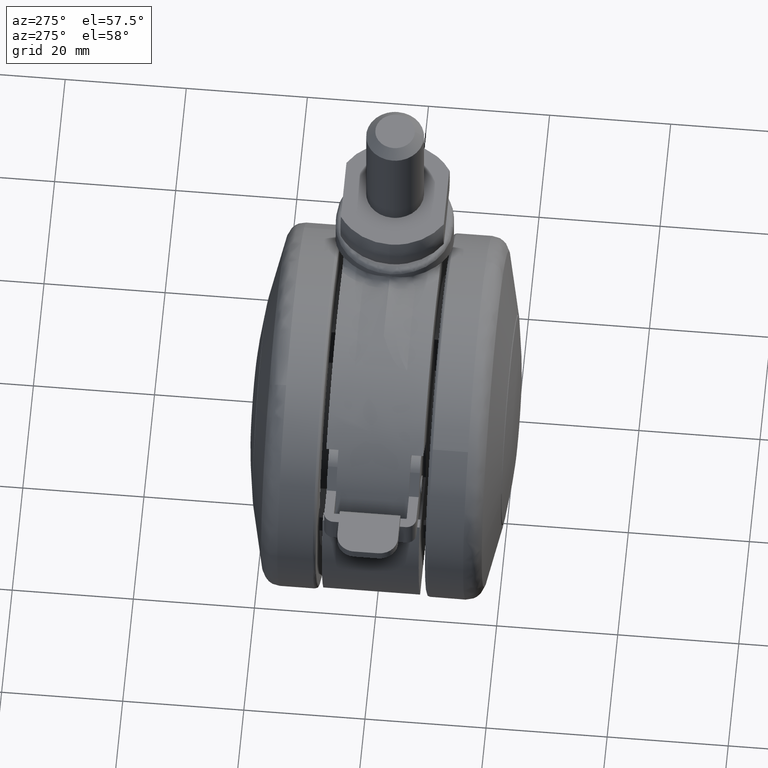
[diagram: clean part render]
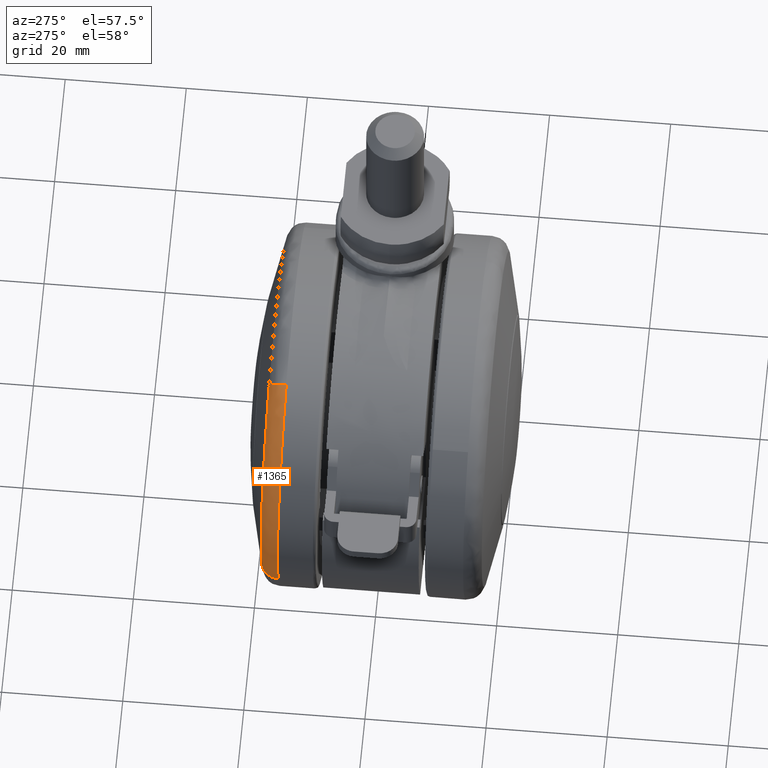
[diagram: same view with one face highlighted and labeled with its STEP entity id]
A machine part, auxiliary view. The second image highlights one B-rep face of the part: STEP entity #1365.
In plain terms, the highlighted face is a freeform B-spline surface patch.
Its self-contained STEP definition (entity closure, byte-faithful):
#736=CARTESIAN_POINT('',(13.438276018698710,-15.324326000230570,26.821870509814680));
#737=VERTEX_POINT('',#736);
#751=CARTESIAN_POINT('',(28.755653670521209,-15.324326000239621,-8.550577874099485));
#752=VERTEX_POINT('',#751);
#753=CARTESIAN_POINT('',(28.755653670521216,-15.324326000239617,-8.550577874099485));
#754=CARTESIAN_POINT('',(30.000000000000004,-15.324326000000100,-4.365832395660854));
#755=CARTESIAN_POINT('',(30.0,-15.324326000000100,-1.653219E-015));
#756=CARTESIAN_POINT('',(29.999999999999996,-15.324326000000097,18.524126393689222));
#757=CARTESIAN_POINT('',(13.438276018698714,-15.324326000230567,26.821870509814683));
#765=(BOUNDED_CURVE()B_SPLINE_CURVE(2,(#753,#754,#755,#756,#757),.UNSPECIFIED.,.F.,.U.)B_SPLINE_CURVE_WITH_KNOTS((3,2,3),(0.201473337935507,0.250000000000000,0.423845389614850),.UNSPECIFIED.)CURVE()GEOMETRIC_REPRESENTATION_ITEM()RATIONAL_B_SPLINE_CURVE((0.908365862590447,0.943147478998632,1.0,0.796327457039311,0.875915174757408))REPRESENTATION_ITEM(''));
#766=EDGE_CURVE('',#752,#737,#765,.T.);
#1245=CARTESIAN_POINT('',(12.453677528621601,-18.215151406440601,24.856679947328331));
#1246=VERTEX_POINT('',#1245);
#1262=CARTESIAN_POINT('',(13.438276018698710,-15.324326000230574,26.821870509814687));
#1263=CARTESIAN_POINT('',(13.438276018538525,-17.605383793678467,26.821870509502922));
#1264=CARTESIAN_POINT('',(12.453677528621608,-18.215151406440597,24.856679947328331));
#1272=(BOUNDED_CURVE()B_SPLINE_CURVE(2,(#1262,#1263,#1264),.UNSPECIFIED.,.F.,.U.)B_SPLINE_CURVE_WITH_KNOTS((3,3),(-1.682407104674477,-0.310963356789594),.UNSPECIFIED.)CURVE()GEOMETRIC_REPRESENTATION_ITEM()RATIONAL_B_SPLINE_CURVE((0.840624089176072,0.669819557617458,0.842283443564856))REPRESENTATION_ITEM(''));
#1273=EDGE_CURVE('',#737,#1246,#1272,.T.);
#1280=CARTESIAN_POINT('',(26.648778269221740,-18.215151406249429,-7.924092300508762));
#1281=VERTEX_POINT('',#1280);
#1282=CARTESIAN_POINT('',(28.755653670521209,-15.324326000239617,-8.550577874099485));
#1283=CARTESIAN_POINT('',(28.755653670172144,-17.605383792553681,-8.550577873995463));
#1284=CARTESIAN_POINT('',(26.648778269221740,-18.215151406249429,-7.924092300508762));
#1292=(BOUNDED_CURVE()B_SPLINE_CURVE(2,(#1282,#1283,#1284),.UNSPECIFIED.,.F.,.U.)B_SPLINE_CURVE_WITH_KNOTS((3,3),(-1.682407104667649,-0.310963357330274),.UNSPECIFIED.)CURVE()GEOMETRIC_REPRESENTATION_ITEM()RATIONAL_B_SPLINE_CURVE((0.896053079460034,0.713986055213189,0.897821848055662))REPRESENTATION_ITEM(''));
#1293=EDGE_CURVE('',#752,#1281,#1292,.T.);
#1328=CARTESIAN_POINT('',(28.750496545595002,-15.144735379998252,-8.549044387891879));
#1329=CARTESIAN_POINT('',(35.917419218355462,-15.144735379998258,15.553367086024547));
#1330=CARTESIAN_POINT('',(13.435865958085662,-15.144735379998252,26.817060195345245));
#1331=CARTESIAN_POINT('',(28.898436743387535,-17.718342410657574,-8.593034839175950));
#1332=CARTESIAN_POINT('',(36.102237942961963,-17.718342410657566,15.633399380402389));
#1333=CARTESIAN_POINT('',(13.505002317668213,-17.718342410657570,26.955051592579782));
#1334=CARTESIAN_POINT('',(26.481867600198310,-18.257897518616847,-7.874460923808224));
#1335=CARTESIAN_POINT('',(33.083266536731841,-18.257897518616847,14.326090238343747));
#1336=CARTESIAN_POINT('',(12.375675767260834,-18.257897518616844,24.700993820869812));
#1344=(BOUNDED_SURFACE()B_SPLINE_SURFACE(2,2,((#1328,#1331,#1334),(#1329,#1332,#1335),(#1330,#1333,#1336)),.UNSPECIFIED.,.F.,.F.,.U.)B_SPLINE_SURFACE_WITH_KNOTS((3,3),(3,3),(0.0,43.625324671038719),(0.0,4.447995575053250),.UNSPECIFIED.)GEOMETRIC_REPRESENTATION_ITEM()RATIONAL_B_SPLINE_SURFACE(((0.915154551617283,0.694796251930559,0.917099982126814),(0.679277096762512,0.515715274560791,0.680721100276598),(0.858543962452138,0.651816817361815,0.860369050482762)))REPRESENTATION_ITEM('')SURFACE());
#1345=CARTESIAN_POINT('',(26.648778269221747,-18.215151406249436,-7.924092300508762));
#1346=CARTESIAN_POINT('',(27.801953607345450,-18.215151576069502,-4.045955657594026));
#1347=CARTESIAN_POINT('',(27.801953607345450,-18.215151576069498,-1.653219E-015));
#1348=CARTESIAN_POINT('',(27.801953607345446,-18.215151576069495,17.166896753659067));
#1349=CARTESIAN_POINT('',(12.453677528621604,-18.215151406440597,24.856679947328331));
#1357=(BOUNDED_CURVE()B_SPLINE_CURVE(2,(#1345,#1346,#1347,#1348,#1349),.UNSPECIFIED.,.F.,.U.)B_SPLINE_CURVE_WITH_KNOTS((3,2,3),(0.201473337933165,0.250000000000000,0.423845389613726),.UNSPECIFIED.)CURVE()GEOMETRIC_REPRESENTATION_ITEM()RATIONAL_B_SPLINE_CURVE((0.908365862587090,0.943147478995888,1.0,0.796327457040628,0.875915174756380))REPRESENTATION_ITEM(''));
#1358=EDGE_CURVE('',#1281,#1246,#1357,.T.);
#1359=ORIENTED_EDGE('',*,*,#1358,.F.);
#1360=ORIENTED_EDGE('',*,*,#1293,.F.);
#1361=ORIENTED_EDGE('',*,*,#766,.T.);
#1362=ORIENTED_EDGE('',*,*,#1273,.T.);
#1363=EDGE_LOOP('',(#1359,#1360,#1361,#1362));
#1364=FACE_OUTER_BOUND('',#1363,.T.);
#1365=ADVANCED_FACE('',(#1364),#1344,.T.);